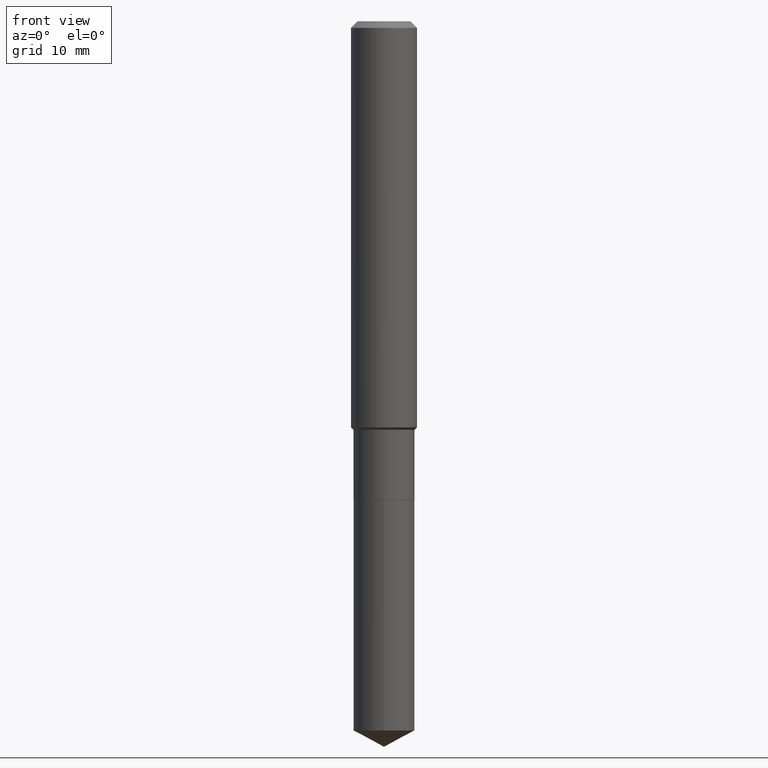
[diagram: clean part render]
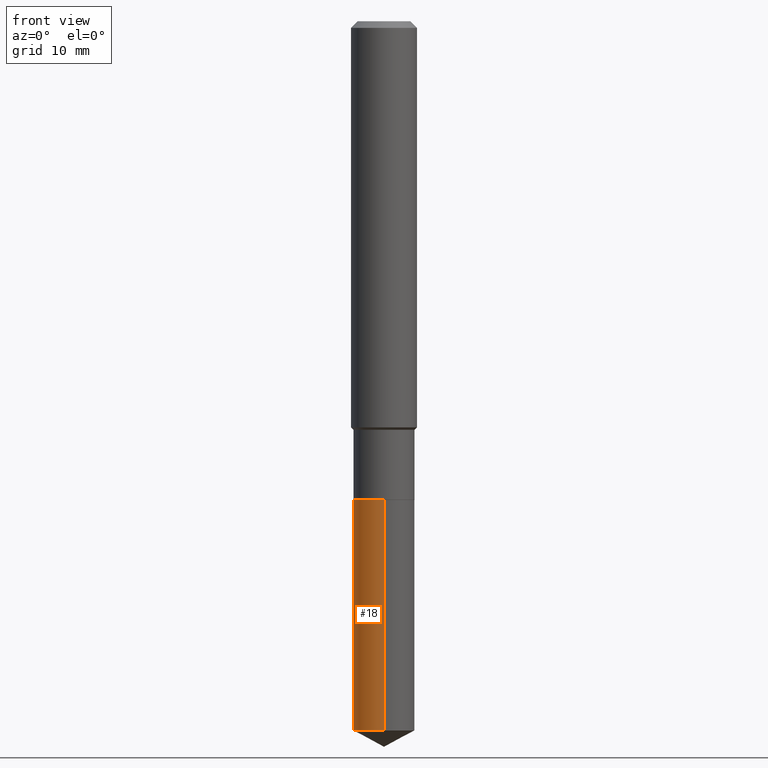
[diagram: same view with one face highlighted and labeled with its STEP entity id]
A machine part, front view. The second image highlights one B-rep face of the part: STEP entity #18.
In plain terms, the highlighted cylindrical surface (edge-blend (fillet) strip) has radius 2.7788 mm, axis along (-0, 0, 1).
Its self-contained STEP definition (entity closure, byte-faithful):
#2 = VERTEX_POINT ( 'NONE', #242 ) ;
#10 = ORIENTED_EDGE ( 'NONE', *, *, #232, .T. ) ;
#14 = VECTOR ( 'NONE', #136, 39.37007874015748143 ) ;
#18 = ADVANCED_FACE ( 'NONE', ( #153 ), #307, .T. ) ;
#21 = CARTESIAN_POINT ( 'NONE',  ( -7.639361169388354664E-16, -0.1094000000000059925, -1.714799999999999436 ) ) ;
#57 = DIRECTION ( 'NONE',  ( -2.445625295083006978E-29, 3.491257237834600047E-15, 1.000000000000000000 ) ) ;
#60 = CARTESIAN_POINT ( 'NONE',  ( 6.212184812875433221E-29, -8.868984111651468523E-15, -2.540230988176234384 ) ) ;
#68 = AXIS2_PLACEMENT_3D ( 'NONE', #88, #424, #435 ) ;
#88 = CARTESIAN_POINT ( 'NONE',  ( 4.193489908846271627E-29, -5.987192199848224509E-15, -1.714799999999999658 ) ) ;
#121 = EDGE_CURVE ( 'NONE', #444, #439, #132, .T. ) ;
#132 = LINE ( 'NONE', #21, #14 ) ;
#136 = DIRECTION ( 'NONE',  ( -2.445625295083006978E-29, 3.491257237834599652E-15, 1.000000000000000000 ) ) ;
#153 = FACE_OUTER_BOUND ( 'NONE', #309, .T. ) ;
#157 = EDGE_CURVE ( 'NONE', #2, #439, #173, .T. ) ;
#165 = CIRCLE ( 'NONE', #338, 0.1093999999999999972 ) ;
#172 = AXIS2_PLACEMENT_3D ( 'NONE', #456, #57, #398 ) ;
#173 = CIRCLE ( 'NONE', #68, 0.1093999999999999972 ) ;
#219 = VECTOR ( 'NONE', #455, 39.37007874015748143 ) ;
#220 = CARTESIAN_POINT ( 'NONE',  ( 7.773337529216115094E-16, 0.1093999999999911155, -2.540230988176234828 ) ) ;
#232 = EDGE_CURVE ( 'NONE', #261, #444, #165, .T. ) ;
#242 = CARTESIAN_POINT ( 'NONE',  ( 7.773337529216117066E-16, 0.1093999999999940020, -1.714799999999999880 ) ) ;
#258 = DIRECTION ( 'NONE',  ( -6.982962677686265922E-15, -1.000000000000000000, 4.994237648380736877E-15 ) ) ;
#261 = VERTEX_POINT ( 'NONE', #220 ) ;
#262 = DIRECTION ( 'NONE',  ( -2.445625295083006978E-29, 3.491257237834600047E-15, 1.000000000000000000 ) ) ;
#306 = LINE ( 'NONE', #450, #219 ) ;
#307 = CYLINDRICAL_SURFACE ( 'NONE', #172, 0.1093999999999999972 ) ;
#309 = EDGE_LOOP ( 'NONE', ( #365, #10, #410, #442 ) ) ;
#338 = AXIS2_PLACEMENT_3D ( 'NONE', #60, #262, #258 ) ;
#341 = CARTESIAN_POINT ( 'NONE',  ( -7.639361169388152518E-16, -0.1094000000000088374, -2.540230988176233495 ) ) ;
#365 = ORIENTED_EDGE ( 'NONE', *, *, #425, .F. ) ;
#398 = DIRECTION ( 'NONE',  ( -6.982962677686265922E-15, -1.000000000000000000, 2.497118824190368439E-15 ) ) ;
#410 = ORIENTED_EDGE ( 'NONE', *, *, #121, .T. ) ;
#424 = DIRECTION ( 'NONE',  ( -2.445625295083006978E-29, 3.491257237834600047E-15, 1.000000000000000000 ) ) ;
#425 = EDGE_CURVE ( 'NONE', #261, #2, #306, .T. ) ;
#435 = DIRECTION ( 'NONE',  ( -6.982962677686265922E-15, -1.000000000000000000, 2.497118824190368439E-15 ) ) ;
#439 = VERTEX_POINT ( 'NONE', #490 ) ;
#442 = ORIENTED_EDGE ( 'NONE', *, *, #157, .F. ) ;
#444 = VERTEX_POINT ( 'NONE', #341 ) ;
#450 = CARTESIAN_POINT ( 'NONE',  ( 7.773337529215914920E-16, 0.1093999999999940020, -1.714799999999999880 ) ) ;
#455 = DIRECTION ( 'NONE',  ( -2.445625295083006978E-29, 3.491257237834599652E-15, 1.000000000000000000 ) ) ;
#456 = CARTESIAN_POINT ( 'NONE',  ( 4.193489908846271627E-29, -5.987192199848224509E-15, -1.714799999999999658 ) ) ;
#490 = CARTESIAN_POINT ( 'NONE',  ( -7.639361169388354664E-16, -0.1094000000000059925, -1.714799999999999436 ) ) ;